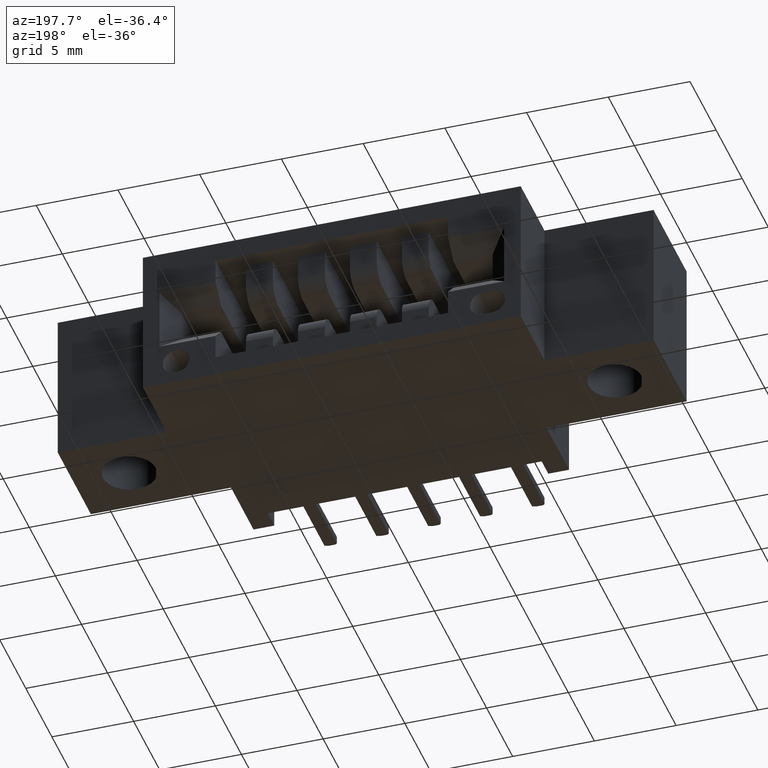
[diagram: clean part render]
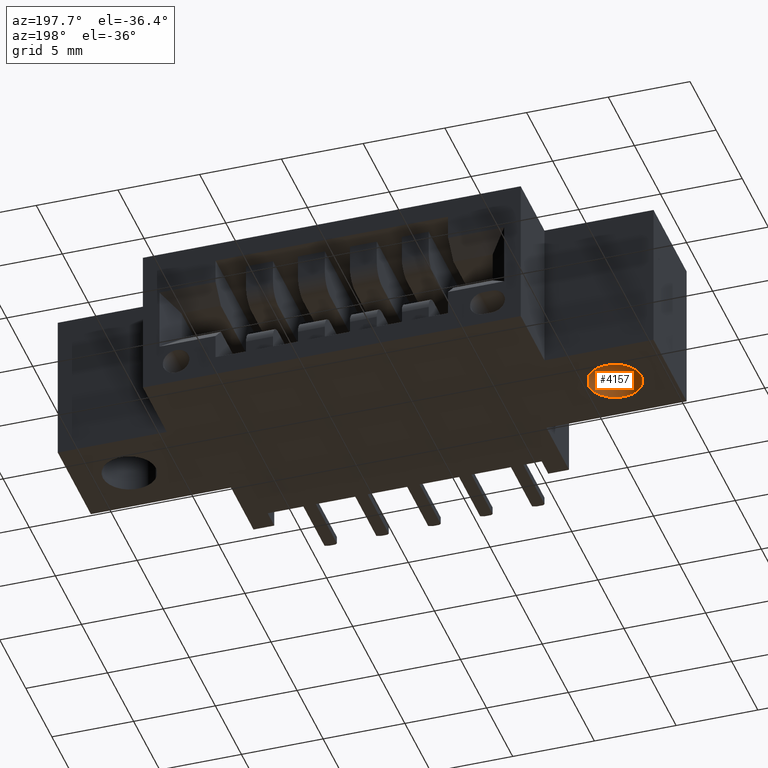
[diagram: same view with one face highlighted and labeled with its STEP entity id]
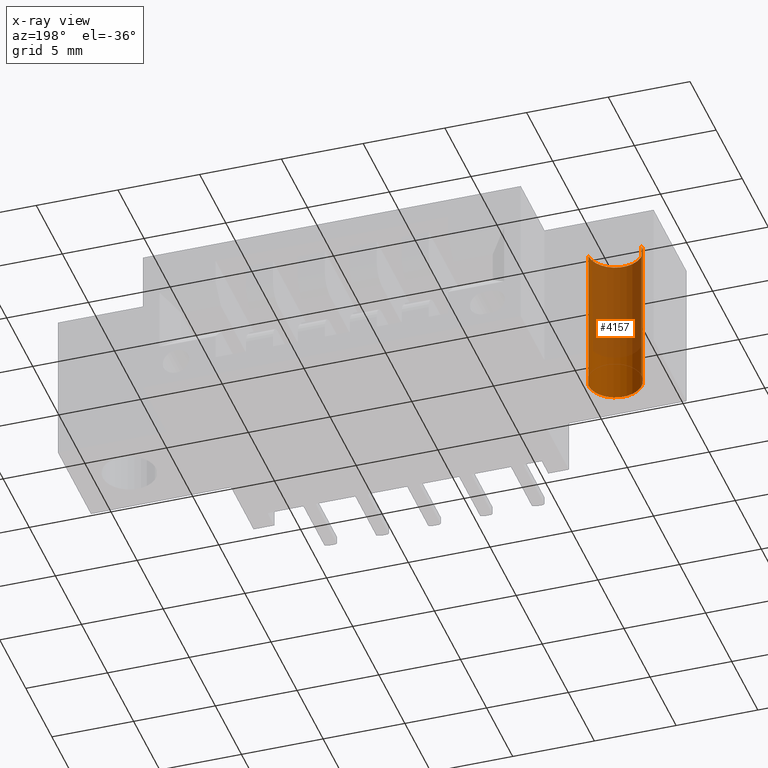
[diagram: x-ray of the same camera — body ghosted, the highlighted face saturated]
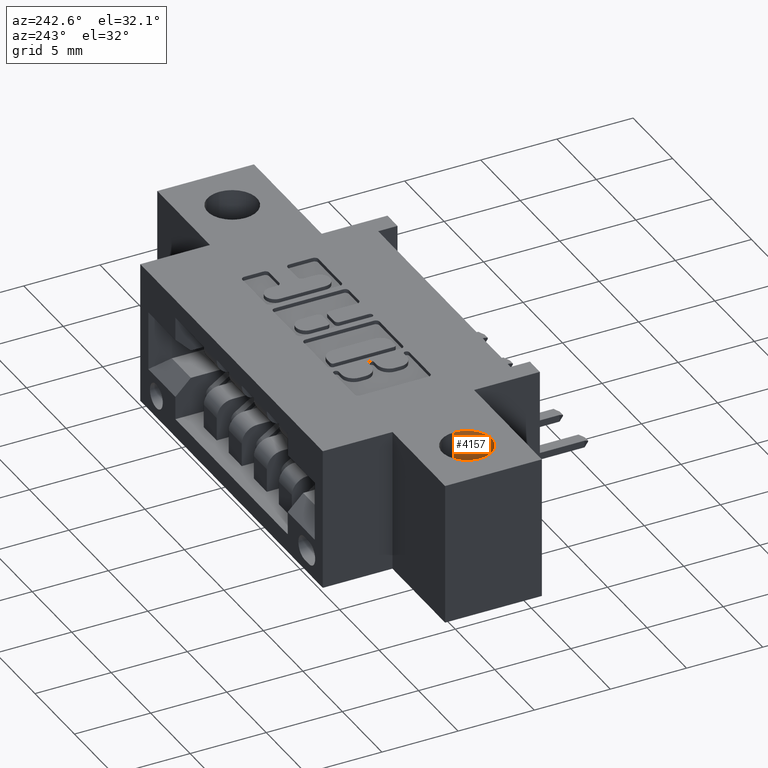
[diagram: same view with one face highlighted and labeled with its STEP entity id]
A machine part, auxiliary view. The second image highlights one B-rep face of the part: STEP entity #4157.
The next image is the same camera in x-ray: the body ghosted, the highlighted face saturated — about 63% of this face is hidden behind the body in this view.
A second angle (auxiliary view) of the same face is appended — the face is thin or edge-on in the first view.
In plain terms, the highlighted cylindrical surface (edge-blend (fillet) strip) has radius 1.6256 mm, axis along (0, 0, 1).
Its self-contained STEP definition (entity closure, byte-faithful):
#288 = DIRECTION ( 'NONE',  ( 1.000000000000000000, 0.0000000000000000000, 0.0000000000000000000 ) ) ;
#309 = DIRECTION ( 'NONE',  ( 1.000000000000000000, 0.0000000000000000000, 0.0000000000000000000 ) ) ;
#465 = CIRCLE ( 'NONE', #5710, 0.06399999999999998745 ) ;
#707 = VECTOR ( 'NONE', #7532, 39.37007874015748143 ) ;
#1539 = ORIENTED_EDGE ( 'NONE', *, *, #4891, .F. ) ;
#1903 = VERTEX_POINT ( 'NONE', #7364 ) ;
#2086 = EDGE_LOOP ( 'NONE', ( #4429, #3696, #7890, #1539 ) ) ;
#2292 = LINE ( 'NONE', #4919, #707 ) ;
#2724 = VERTEX_POINT ( 'NONE', #6492 ) ;
#2734 = VERTEX_POINT ( 'NONE', #6364 ) ;
#3205 = VERTEX_POINT ( 'NONE', #4699 ) ;
#3401 = CARTESIAN_POINT ( 'NONE',  ( 0.1325000000000003397, 0.2949999999999999845, -0.3700000000000001621 ) ) ;
#3439 = FACE_OUTER_BOUND ( 'NONE', #2086, .T. ) ;
#3463 = DIRECTION ( 'NONE',  ( 0.0000000000000000000, 0.0000000000000000000, 1.000000000000000000 ) ) ;
#3659 = AXIS2_PLACEMENT_3D ( 'NONE', #3401, #7992, #309 ) ;
#3696 = ORIENTED_EDGE ( 'NONE', *, *, #3981, .T. ) ;
#3879 = EDGE_CURVE ( 'NONE', #2734, #3205, #8052, .T. ) ;
#3981 = EDGE_CURVE ( 'NONE', #2724, #2734, #4857, .T. ) ;
#4014 = DIRECTION ( 'NONE',  ( -0.0000000000000000000, -0.0000000000000000000, 1.000000000000000000 ) ) ;
#4157 = ADVANCED_FACE ( 'NONE', ( #3439 ), #6733, .F. ) ;
#4429 = ORIENTED_EDGE ( 'NONE', *, *, #6887, .F. ) ;
#4653 = VECTOR ( 'NONE', #4014, 39.37007874015748143 ) ;
#4699 = CARTESIAN_POINT ( 'NONE',  ( 0.1965000000000003133, 0.2949999999999999845, 0.0000000000000000000 ) ) ;
#4857 = LINE ( 'NONE', #5427, #4653 ) ;
#4891 = EDGE_CURVE ( 'NONE', #1903, #3205, #2292, .T. ) ;
#4919 = CARTESIAN_POINT ( 'NONE',  ( 0.1965000000000003133, 0.2949999999999999845, -0.3700000000000001621 ) ) ;
#4995 = CARTESIAN_POINT ( 'NONE',  ( 0.1325000000000003397, 0.2949999999999999845, 0.0000000000000000000 ) ) ;
#5427 = CARTESIAN_POINT ( 'NONE',  ( 0.06850000000000033840, 0.2949999999999999845, -0.3700000000000001621 ) ) ;
#5710 = AXIS2_PLACEMENT_3D ( 'NONE', #7400, #3463, #288 ) ;
#6359 = DIRECTION ( 'NONE',  ( 1.000000000000000000, 0.0000000000000000000, 0.0000000000000000000 ) ) ;
#6364 = CARTESIAN_POINT ( 'NONE',  ( 0.06850000000000033840, 0.2949999999999999845, 0.0000000000000000000 ) ) ;
#6492 = CARTESIAN_POINT ( 'NONE',  ( 0.06850000000000033840, 0.2949999999999999845, -0.3700000000000001621 ) ) ;
#6733 = CYLINDRICAL_SURFACE ( 'NONE', #3659, 0.06399999999999998745 ) ;
#6887 = EDGE_CURVE ( 'NONE', #2724, #1903, #465, .T. ) ;
#7364 = CARTESIAN_POINT ( 'NONE',  ( 0.1965000000000003133, 0.2949999999999999845, -0.3700000000000001621 ) ) ;
#7400 = CARTESIAN_POINT ( 'NONE',  ( 0.1325000000000003397, 0.2949999999999999845, -0.3700000000000001621 ) ) ;
#7532 = DIRECTION ( 'NONE',  ( -0.0000000000000000000, -0.0000000000000000000, 1.000000000000000000 ) ) ;
#7609 = DIRECTION ( 'NONE',  ( 0.0000000000000000000, 0.0000000000000000000, 1.000000000000000000 ) ) ;
#7890 = ORIENTED_EDGE ( 'NONE', *, *, #3879, .T. ) ;
#7992 = DIRECTION ( 'NONE',  ( -0.0000000000000000000, -0.0000000000000000000, 1.000000000000000000 ) ) ;
#8052 = CIRCLE ( 'NONE', #8317, 0.06399999999999998745 ) ;
#8317 = AXIS2_PLACEMENT_3D ( 'NONE', #4995, #7609, #6359 ) ;